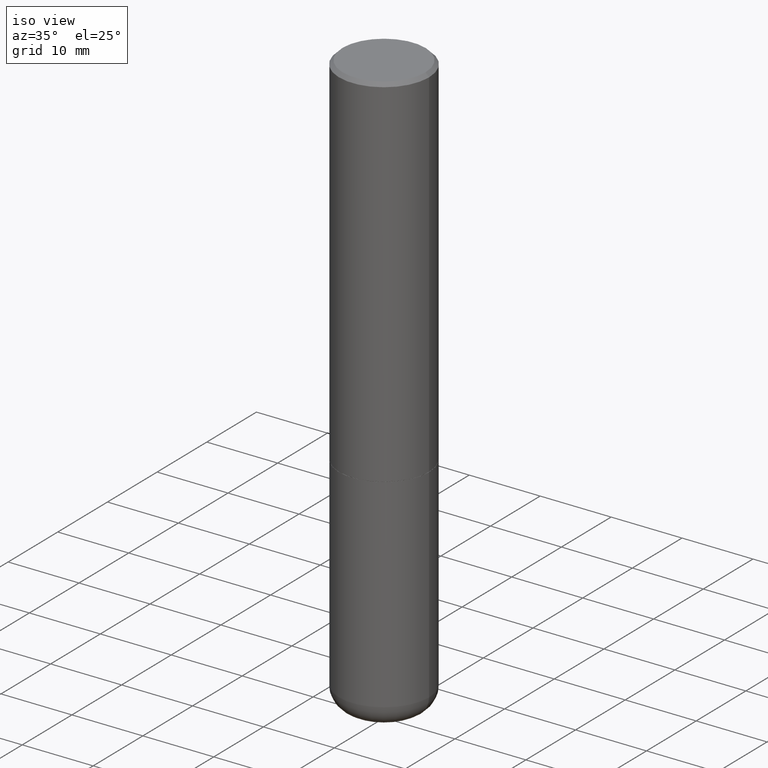
[diagram: clean part render]
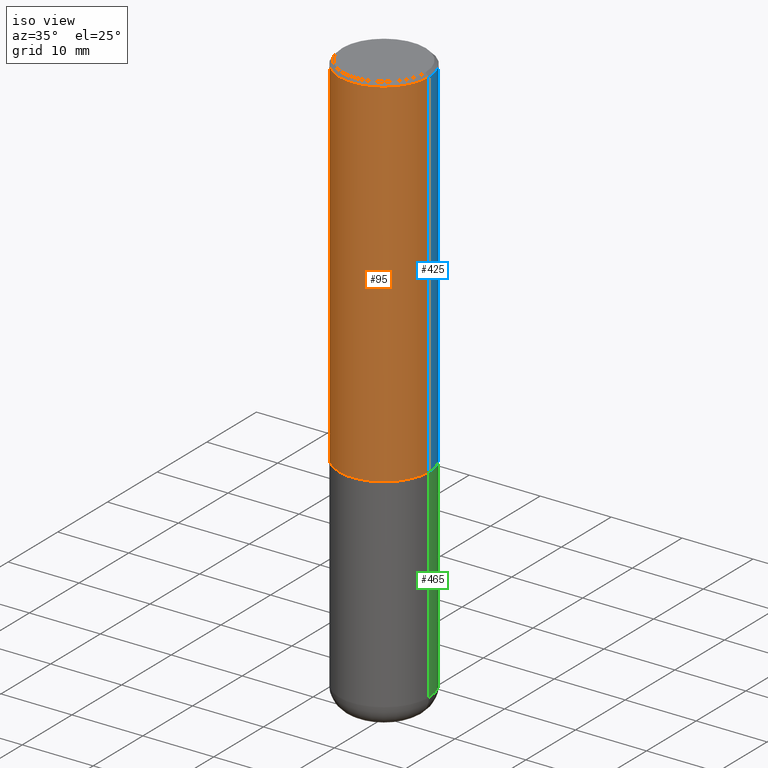
[diagram: same view with three faces highlighted in distinct colors, each labeled with its STEP entity id]
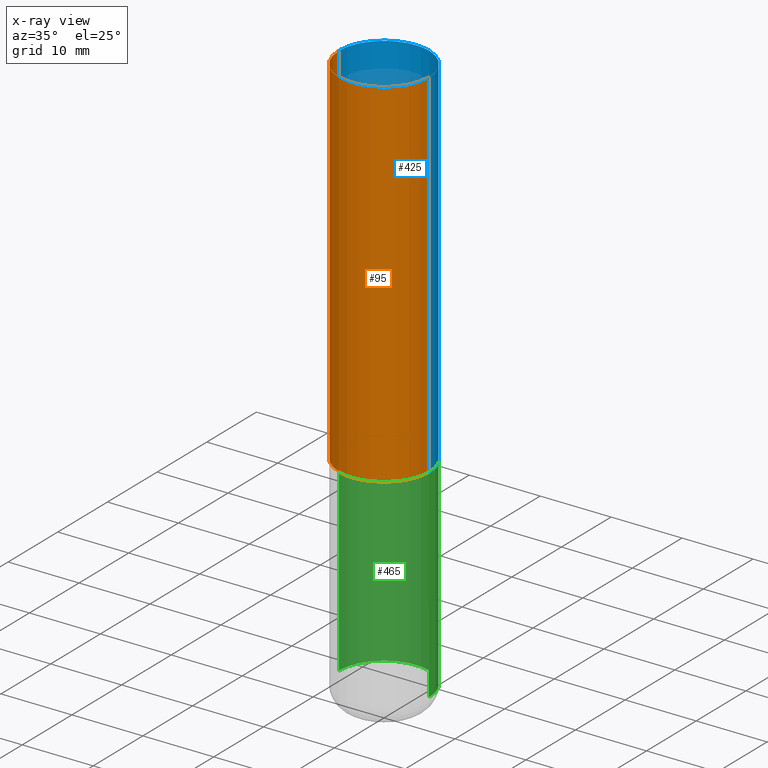
[diagram: x-ray of the same camera — body ghosted, the three highlighted faces saturated]
A machine part, iso view with three faces highlighted in distinct colors.
The next image is the same camera in x-ray (body ghosted, the three faces saturated) — at least one of them is partly hidden behind the body in this view.
Their STEP definitions:

[orange] entity #95 — the highlighted cylindrical surface (partial cylindrical patch) has radius 6.35 mm, axis along (-0, 0, 1).
#2 = CARTESIAN_POINT ( 'NONE',  ( -0.2499999999999994171, 1.675911042644699238E-15, -0.02000000000000011491 ) ) ;
#4 = CARTESIAN_POINT ( 'NONE',  ( -0.2499999999999996114, -1.748293572161906447E-15, -1.998999999999999888 ) ) ;
#38 = CARTESIAN_POINT ( 'NONE',  ( 0.2499999999999994171, -1.784954126219742244E-15, -0.02000000000000011491 ) ) ;
#61 = EDGE_CURVE ( 'NONE', #264, #484, #424, .T. ) ;
#79 = EDGE_LOOP ( 'NONE', ( #419, #147, #375, #226 ) ) ;
#81 = CARTESIAN_POINT ( 'NONE',  ( 0.000000000000000000, 0.000000000000000000, 0.000000000000000000 ) ) ;
#85 = DIRECTION ( 'NONE',  ( 1.000000000000000000, -6.982962677686266711E-15, 0.000000000000000000 ) ) ;
#86 = CYLINDRICAL_SURFACE ( 'NONE', #136, 0.2499999999999995282 ) ;
#95 = ADVANCED_FACE ( 'NONE', ( #354 ), #86, .T. ) ;
#108 = VERTEX_POINT ( 'NONE', #2 ) ;
#131 = CARTESIAN_POINT ( 'NONE',  ( 0.2499999999999995282, -1.745740669421563325E-15, 1.219044193948981566E-29 ) ) ;
#136 = AXIS2_PLACEMENT_3D ( 'NONE', #81, #429, #397 ) ;
#147 = ORIENTED_EDGE ( 'NONE', *, *, #61, .T. ) ;
#163 = DIRECTION ( 'NONE',  ( -2.445468806185136877E-29, 3.491481338843145188E-15, 1.000000000000000000 ) ) ;
#206 = DIRECTION ( 'NONE',  ( -2.445468806185136597E-29, 3.491481338843145583E-15, 1.000000000000000000 ) ) ;
#213 = VECTOR ( 'NONE', #328, 39.37007874015748143 ) ;
#223 = VECTOR ( 'NONE', #163, 39.37007874015748143 ) ;
#226 = ORIENTED_EDGE ( 'NONE', *, *, #291, .F. ) ;
#229 = EDGE_CURVE ( 'NONE', #484, #268, #327, .T. ) ;
#238 = CARTESIAN_POINT ( 'NONE',  ( 4.890937612370302060E-31, -6.982962677686331052E-17, -0.02000000000000011491 ) ) ;
#264 = VERTEX_POINT ( 'NONE', #4 ) ;
#268 = VERTEX_POINT ( 'NONE', #38 ) ;
#276 = CARTESIAN_POINT ( 'NONE',  ( 4.888492143564087591E-29, -6.979471196347447369E-15, -1.998999999999999888 ) ) ;
#277 = AXIS2_PLACEMENT_3D ( 'NONE', #276, #206, #462 ) ;
#291 = EDGE_CURVE ( 'NONE', #108, #268, #490, .T. ) ;
#321 = LINE ( 'NONE', #468, #213 ) ;
#327 = LINE ( 'NONE', #131, #223 ) ;
#328 = DIRECTION ( 'NONE',  ( -2.445468806185136877E-29, 3.491481338843145188E-15, 1.000000000000000000 ) ) ;
#349 = AXIS2_PLACEMENT_3D ( 'NONE', #238, #388, #85 ) ;
#354 = FACE_OUTER_BOUND ( 'NONE', #79, .T. ) ;
#375 = ORIENTED_EDGE ( 'NONE', *, *, #229, .T. ) ;
#388 = DIRECTION ( 'NONE',  ( -2.445468806185136597E-29, 3.491481338843145583E-15, 1.000000000000000000 ) ) ;
#397 = DIRECTION ( 'NONE',  ( 1.000000000000000000, -6.982962677686266711E-15, 4.876176775795935232E-29 ) ) ;
#410 = EDGE_CURVE ( 'NONE', #264, #108, #321, .T. ) ;
#419 = ORIENTED_EDGE ( 'NONE', *, *, #410, .F. ) ;
#424 = CIRCLE ( 'NONE', #277, 0.2499999999999996669 ) ;
#429 = DIRECTION ( 'NONE',  ( -2.445468806185136597E-29, 3.491481338843145583E-15, 1.000000000000000000 ) ) ;
#462 = DIRECTION ( 'NONE',  ( 1.000000000000000000, -6.982962677686264344E-15, 0.000000000000000000 ) ) ;
#468 = CARTESIAN_POINT ( 'NONE',  ( -0.2499999999999995282, 1.776356839400247112E-15, -1.229733772563724063E-29 ) ) ;
#472 = CARTESIAN_POINT ( 'NONE',  ( 0.2499999999999996669, -8.725211865769010891E-15, -1.998999999999999888 ) ) ;
#484 = VERTEX_POINT ( 'NONE', #472 ) ;
#490 = CIRCLE ( 'NONE', #349, 0.2499999999999994171 ) ;

[blue] entity #425 — the highlighted cylindrical surface (partial cylindrical patch) has radius 6.35 mm, axis along (-0, 0, 1).
#2 = CARTESIAN_POINT ( 'NONE',  ( -0.2499999999999994171, 1.675911042644699238E-15, -0.02000000000000011491 ) ) ;
#4 = CARTESIAN_POINT ( 'NONE',  ( -0.2499999999999996114, -1.748293572161906447E-15, -1.998999999999999888 ) ) ;
#36 = AXIS2_PLACEMENT_3D ( 'NONE', #477, #94, #250 ) ;
#38 = CARTESIAN_POINT ( 'NONE',  ( 0.2499999999999994171, -1.784954126219742244E-15, -0.02000000000000011491 ) ) ;
#39 = ORIENTED_EDGE ( 'NONE', *, *, #410, .T. ) ;
#60 = CARTESIAN_POINT ( 'NONE',  ( 4.888492143564087591E-29, -6.979471196347447369E-15, -1.998999999999999888 ) ) ;
#63 = ORIENTED_EDGE ( 'NONE', *, *, #130, .F. ) ;
#91 = AXIS2_PLACEMENT_3D ( 'NONE', #280, #160, #438 ) ;
#94 = DIRECTION ( 'NONE',  ( -2.445468806185136597E-29, 3.491481338843145583E-15, 1.000000000000000000 ) ) ;
#108 = VERTEX_POINT ( 'NONE', #2 ) ;
#114 = CIRCLE ( 'NONE', #316, 0.2499999999999996669 ) ;
#130 = EDGE_CURVE ( 'NONE', #268, #108, #368, .T. ) ;
#131 = CARTESIAN_POINT ( 'NONE',  ( 0.2499999999999995282, -1.745740669421563325E-15, 1.219044193948981566E-29 ) ) ;
#160 = DIRECTION ( 'NONE',  ( -2.445468806185136597E-29, 3.491481338843145583E-15, 1.000000000000000000 ) ) ;
#163 = DIRECTION ( 'NONE',  ( -2.445468806185136877E-29, 3.491481338843145188E-15, 1.000000000000000000 ) ) ;
#173 = DIRECTION ( 'NONE',  ( -2.445468806185136597E-29, 3.491481338843145583E-15, 1.000000000000000000 ) ) ;
#213 = VECTOR ( 'NONE', #328, 39.37007874015748143 ) ;
#214 = DIRECTION ( 'NONE',  ( 1.000000000000000000, -6.982962677686264344E-15, 0.000000000000000000 ) ) ;
#215 = ORIENTED_EDGE ( 'NONE', *, *, #229, .F. ) ;
#223 = VECTOR ( 'NONE', #163, 39.37007874015748143 ) ;
#229 = EDGE_CURVE ( 'NONE', #484, #268, #327, .T. ) ;
#250 = DIRECTION ( 'NONE',  ( 1.000000000000000000, -6.982962677686266711E-15, 4.876176775795935232E-29 ) ) ;
#264 = VERTEX_POINT ( 'NONE', #4 ) ;
#268 = VERTEX_POINT ( 'NONE', #38 ) ;
#280 = CARTESIAN_POINT ( 'NONE',  ( 4.890937612370302060E-31, -6.982962677686331052E-17, -0.02000000000000011491 ) ) ;
#316 = AXIS2_PLACEMENT_3D ( 'NONE', #60, #173, #214 ) ;
#321 = LINE ( 'NONE', #468, #213 ) ;
#327 = LINE ( 'NONE', #131, #223 ) ;
#328 = DIRECTION ( 'NONE',  ( -2.445468806185136877E-29, 3.491481338843145188E-15, 1.000000000000000000 ) ) ;
#363 = FACE_OUTER_BOUND ( 'NONE', #489, .T. ) ;
#368 = CIRCLE ( 'NONE', #91, 0.2499999999999994171 ) ;
#407 = CYLINDRICAL_SURFACE ( 'NONE', #36, 0.2499999999999995282 ) ;
#410 = EDGE_CURVE ( 'NONE', #264, #108, #321, .T. ) ;
#425 = ADVANCED_FACE ( 'NONE', ( #363 ), #407, .T. ) ;
#432 = EDGE_CURVE ( 'NONE', #484, #264, #114, .T. ) ;
#438 = DIRECTION ( 'NONE',  ( 1.000000000000000000, -6.982962677686266711E-15, 0.000000000000000000 ) ) ;
#448 = ORIENTED_EDGE ( 'NONE', *, *, #432, .T. ) ;
#468 = CARTESIAN_POINT ( 'NONE',  ( -0.2499999999999995282, 1.776356839400247112E-15, -1.229733772563724063E-29 ) ) ;
#472 = CARTESIAN_POINT ( 'NONE',  ( 0.2499999999999996669, -8.725211865769010891E-15, -1.998999999999999888 ) ) ;
#477 = CARTESIAN_POINT ( 'NONE',  ( 0.000000000000000000, 0.000000000000000000, 0.000000000000000000 ) ) ;
#484 = VERTEX_POINT ( 'NONE', #472 ) ;
#489 = EDGE_LOOP ( 'NONE', ( #448, #39, #63, #215 ) ) ;

[green] entity #465 — the highlighted cylindrical surface (partial cylindrical patch) has radius 6.35 mm, axis along (-0, 0, 1).
#8 = CARTESIAN_POINT ( 'NONE',  ( -0.2499999999999995559, 1.776356839400247309E-15, -1.229733772563724203E-29 ) ) ;
#11 = AXIS2_PLACEMENT_3D ( 'NONE', #197, #83, #387 ) ;
#13 = AXIS2_PLACEMENT_3D ( 'NONE', #240, #318, #460 ) ;
#14 = VECTOR ( 'NONE', #194, 39.37007874015748143 ) ;
#15 = EDGE_CURVE ( 'NONE', #65, #456, #232, .T. ) ;
#18 = CARTESIAN_POINT ( 'NONE',  ( -0.2499999999999996669, -7.179300771427075001E-15, -2.000000000000000000 ) ) ;
#64 = CARTESIAN_POINT ( 'NONE',  ( 0.2499999999999994449, -1.267409321338991461E-14, -3.130004569232299527 ) ) ;
#65 = VERTEX_POINT ( 'NONE', #237 ) ;
#67 = EDGE_CURVE ( 'NONE', #330, #456, #464, .T. ) ;
#83 = DIRECTION ( 'NONE',  ( -2.445468806185136597E-29, 3.491481338843145583E-15, 1.000000000000000000 ) ) ;
#111 = EDGE_CURVE ( 'NONE', #457, #330, #422, .T. ) ;
#113 = ORIENTED_EDGE ( 'NONE', *, *, #300, .F. ) ;
#118 = CARTESIAN_POINT ( 'NONE',  ( 0.2499999999999995559, -1.745740669421563522E-15, 1.219044193948981706E-29 ) ) ;
#126 = VECTOR ( 'NONE', #196, 39.37007874015748143 ) ;
#132 = FACE_OUTER_BOUND ( 'NONE', #421, .T. ) ;
#137 = ORIENTED_EDGE ( 'NONE', *, *, #111, .T. ) ;
#194 = DIRECTION ( 'NONE',  ( -2.445468806185136877E-29, 3.491481338843145188E-15, 1.000000000000000000 ) ) ;
#196 = DIRECTION ( 'NONE',  ( -2.445468806185136877E-29, 3.491481338843145188E-15, 1.000000000000000000 ) ) ;
#197 = CARTESIAN_POINT ( 'NONE',  ( 7.654328537274535481E-29, -1.092835254396835267E-14, -3.130004569232299527 ) ) ;
#199 = LINE ( 'NONE', #118, #126 ) ;
#232 = CIRCLE ( 'NONE', #13, 0.2499999999999996669 ) ;
#237 = CARTESIAN_POINT ( 'NONE',  ( 0.2499999999999996669, -8.728703347107855476E-15, -2.000000000000000000 ) ) ;
#240 = CARTESIAN_POINT ( 'NONE',  ( 4.890937612370273194E-29, -6.982962677686291165E-15, -2.000000000000000000 ) ) ;
#251 = AXIS2_PLACEMENT_3D ( 'NONE', #296, #444, #286 ) ;
#286 = DIRECTION ( 'NONE',  ( 1.000000000000000000, -6.982962677686266711E-15, 4.876176775795935232E-29 ) ) ;
#296 = CARTESIAN_POINT ( 'NONE',  ( 0.000000000000000000, 0.000000000000000000, 0.000000000000000000 ) ) ;
#300 = EDGE_CURVE ( 'NONE', #457, #65, #199, .T. ) ;
#306 = ORIENTED_EDGE ( 'NONE', *, *, #67, .T. ) ;
#318 = DIRECTION ( 'NONE',  ( -2.445468806185136597E-29, 3.491481338843145583E-15, 1.000000000000000000 ) ) ;
#330 = VERTEX_POINT ( 'NONE', #433 ) ;
#373 = ORIENTED_EDGE ( 'NONE', *, *, #15, .F. ) ;
#387 = DIRECTION ( 'NONE',  ( 1.000000000000000000, -6.982962677686263555E-15, 0.000000000000000000 ) ) ;
#398 = CYLINDRICAL_SURFACE ( 'NONE', #251, 0.2499999999999995559 ) ;
#421 = EDGE_LOOP ( 'NONE', ( #137, #306, #373, #113 ) ) ;
#422 = CIRCLE ( 'NONE', #11, 0.2499999999999994449 ) ;
#433 = CARTESIAN_POINT ( 'NONE',  ( -0.2499999999999994449, -7.179300771427075001E-15, -3.130004569232299527 ) ) ;
#444 = DIRECTION ( 'NONE',  ( -2.445468806185136597E-29, 3.491481338843145583E-15, 1.000000000000000000 ) ) ;
#456 = VERTEX_POINT ( 'NONE', #18 ) ;
#457 = VERTEX_POINT ( 'NONE', #64 ) ;
#460 = DIRECTION ( 'NONE',  ( 1.000000000000000000, -6.982962677686268288E-15, 0.000000000000000000 ) ) ;
#464 = LINE ( 'NONE', #8, #14 ) ;
#465 = ADVANCED_FACE ( 'NONE', ( #132 ), #398, .T. ) ;